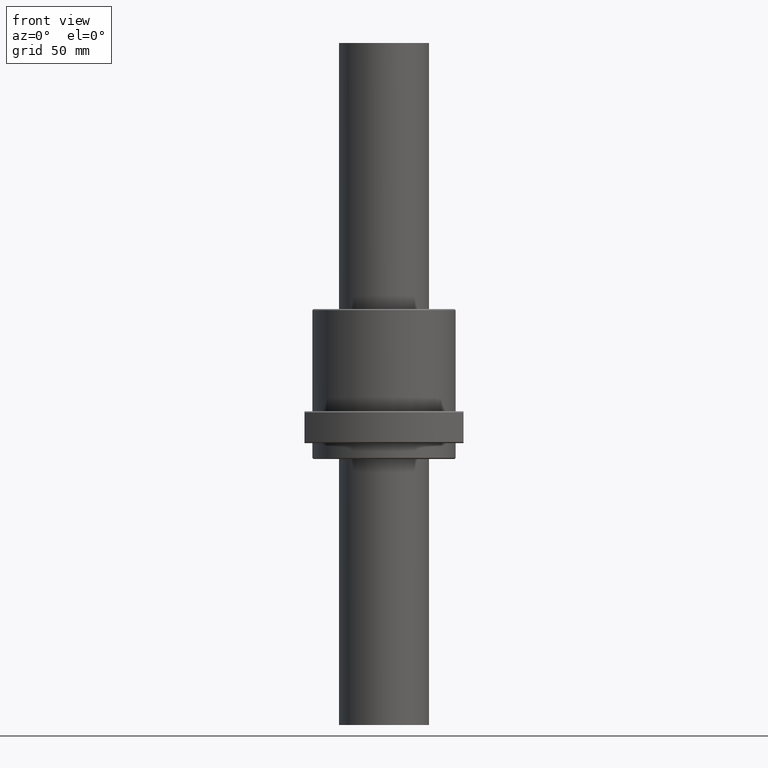
[diagram: clean part render]
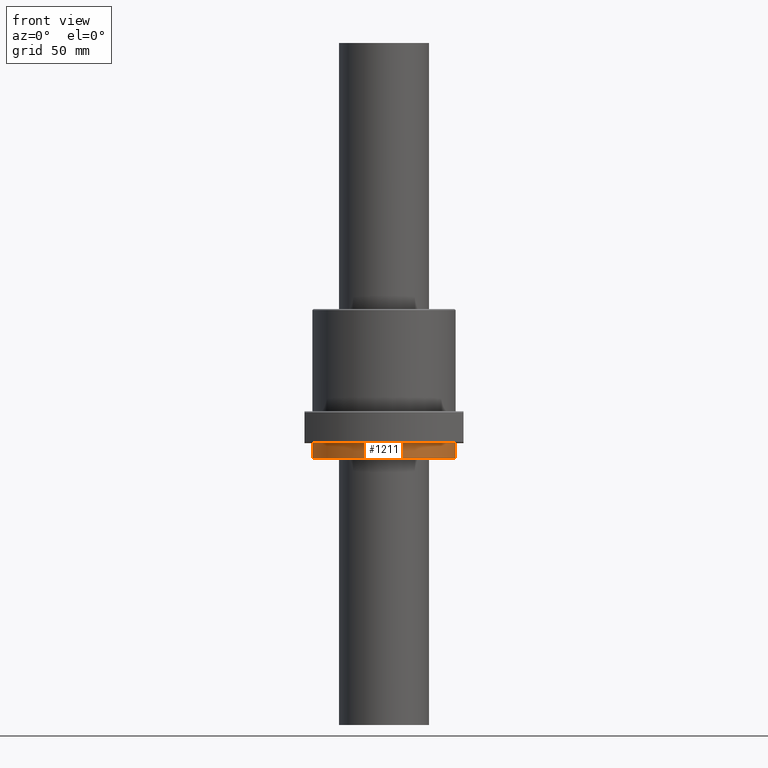
[diagram: same view with one face highlighted and labeled with its STEP entity id]
A machine part, front view. The second image highlights one B-rep face of the part: STEP entity #1211.
In plain terms, the highlighted cylindrical surface (partial cylindrical patch) has radius 31.5 mm, axis along (0, 0, -1).
Its self-contained STEP definition (entity closure, byte-faithful):
#73 = VERTEX_POINT ( 'NONE', #1110 ) ;
#188 = ORIENTED_EDGE ( 'NONE', *, *, #1309, .F. ) ;
#375 = ORIENTED_EDGE ( 'NONE', *, *, #735, .F. ) ;
#428 = DIRECTION ( 'NONE',  ( 0.0000000000000000000, -0.0000000000000000000, 1.000000000000000000 ) ) ;
#562 = EDGE_CURVE ( 'NONE', #73, #847, #1348, .T. ) ;
#616 = CARTESIAN_POINT ( 'NONE',  ( -31.49999610000000400, 3.857636939701911400E-015, -6.999994000000000000 ) ) ;
#735 = EDGE_CURVE ( 'NONE', #1753, #1533, #1273, .T. ) ;
#753 = CARTESIAN_POINT ( 'NONE',  ( -31.49999610000000400, 0.0000000000000000000, -0.5000000000000000000 ) ) ;
#785 = VECTOR ( 'NONE', #428, 1000.000000000000000 ) ;
#798 = DIRECTION ( 'NONE',  ( 1.000000000000000000, 0.0000000000000000000, 0.0000000000000000000 ) ) ;
#800 = DIRECTION ( 'NONE',  ( 0.0000000000000000000, -0.0000000000000000000, 1.000000000000000000 ) ) ;
#802 = CARTESIAN_POINT ( 'NONE',  ( 0.0000000000000000000, 0.0000000000000000000, -6.999994000000000000 ) ) ;
#809 = ORIENTED_EDGE ( 'NONE', *, *, #562, .T. ) ;
#847 = VERTEX_POINT ( 'NONE', #1195 ) ;
#886 = DIRECTION ( 'NONE',  ( 1.000000000000000000, 0.0000000000000000000, 0.0000000000000000000 ) ) ;
#887 = DIRECTION ( 'NONE',  ( 0.0000000000000000000, 0.0000000000000000000, 1.000000000000000000 ) ) ;
#890 = CARTESIAN_POINT ( 'NONE',  ( 0.0000000000000000000, 0.0000000000000000000, -0.5000000000000000000 ) ) ;
#968 = CIRCLE ( 'NONE', #1615, 31.49999610000000400 ) ;
#984 = DIRECTION ( 'NONE',  ( 1.000000000000000000, 0.0000000000000000000, 0.0000000000000000000 ) ) ;
#985 = DIRECTION ( 'NONE',  ( 0.0000000000000000000, -0.0000000000000000000, 1.000000000000000000 ) ) ;
#987 = CARTESIAN_POINT ( 'NONE',  ( 0.0000000000000000000, 0.0000000000000000000, -6.999994000000000000 ) ) ;
#1110 = CARTESIAN_POINT ( 'NONE',  ( 31.49999610000000400, 0.0000000000000000000, -6.999994000000000000 ) ) ;
#1195 = CARTESIAN_POINT ( 'NONE',  ( 31.49999610000000400, 3.857636939701911400E-015, -0.5000000000000000000 ) ) ;
#1211 = ADVANCED_FACE ( 'NONE', ( #1727 ), #1728, .T. ) ;
#1271 = CARTESIAN_POINT ( 'NONE',  ( -31.49999610000000400, 3.857636939701911400E-015, -6.999994000000000000 ) ) ;
#1273 = LINE ( 'NONE', #1271, #785 ) ;
#1294 = ORIENTED_EDGE ( 'NONE', *, *, #1480, .T. ) ;
#1309 = EDGE_CURVE ( 'NONE', #1533, #847, #968, .T. ) ;
#1346 = DIRECTION ( 'NONE',  ( 0.0000000000000000000, -0.0000000000000000000, 1.000000000000000000 ) ) ;
#1347 = CARTESIAN_POINT ( 'NONE',  ( 31.49999610000000400, 0.0000000000000000000, -6.999994000000000000 ) ) ;
#1348 = LINE ( 'NONE', #1347, #1879 ) ;
#1476 = AXIS2_PLACEMENT_3D ( 'NONE', #802, #800, #798 ) ;
#1480 = EDGE_CURVE ( 'NONE', #1753, #73, #1793, .T. ) ;
#1533 = VERTEX_POINT ( 'NONE', #753 ) ;
#1574 = EDGE_LOOP ( 'NONE', ( #375, #1294, #809, #188 ) ) ;
#1615 = AXIS2_PLACEMENT_3D ( 'NONE', #890, #887, #886 ) ;
#1727 = FACE_OUTER_BOUND ( 'NONE', #1574, .T. ) ;
#1728 = CYLINDRICAL_SURFACE ( 'NONE', #1731, 31.49999610000000400 ) ;
#1731 = AXIS2_PLACEMENT_3D ( 'NONE', #987, #985, #984 ) ;
#1753 = VERTEX_POINT ( 'NONE', #616 ) ;
#1793 = CIRCLE ( 'NONE', #1476, 31.49999610000000400 ) ;
#1879 = VECTOR ( 'NONE', #1346, 1000.000000000000000 ) ;